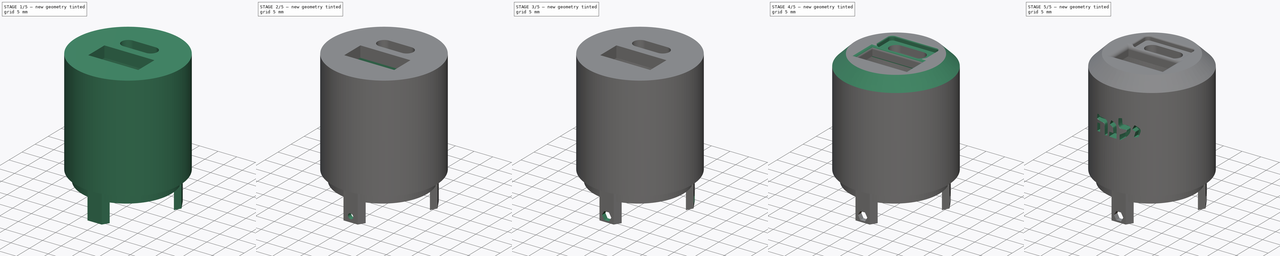
[diagram: build sequence overview — one tinted view per stage of 5, left to right]
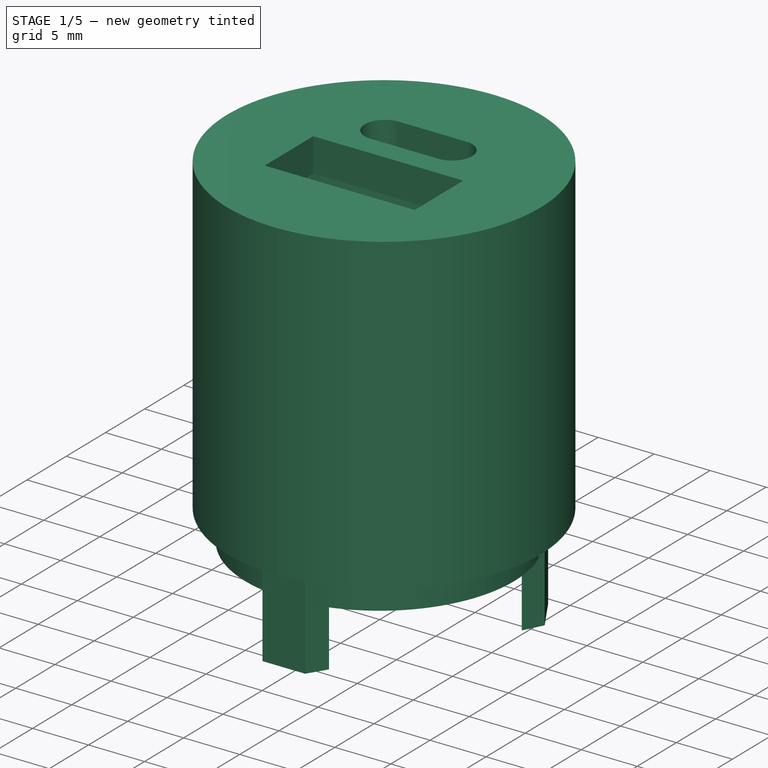
[diagram: stage 1 of 5 — iso view after this stage's code; geometry added in this stage tinted green]
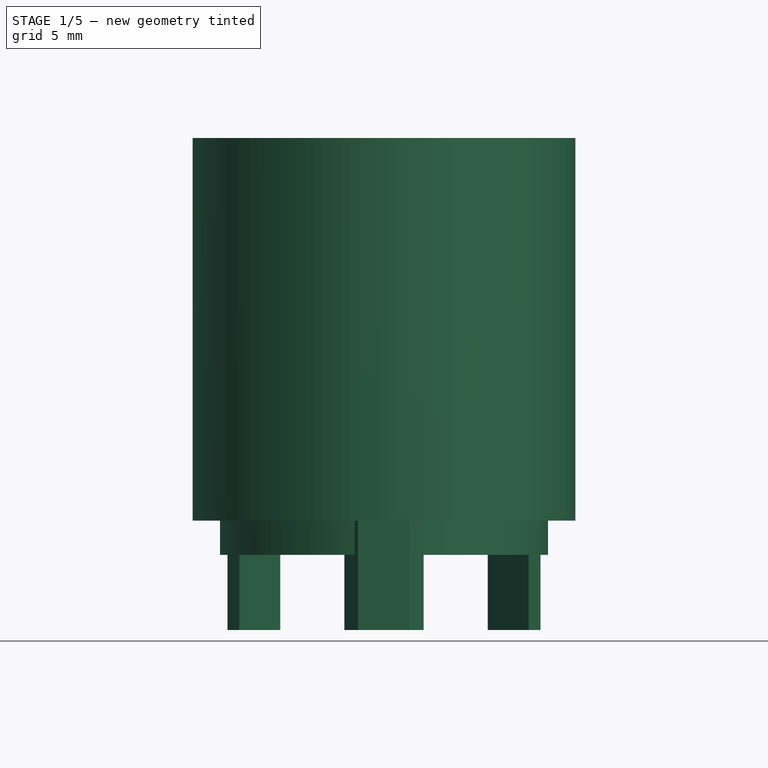
[diagram: stage 1 of 5 — front view after this stage's code; geometry added in this stage tinted green]
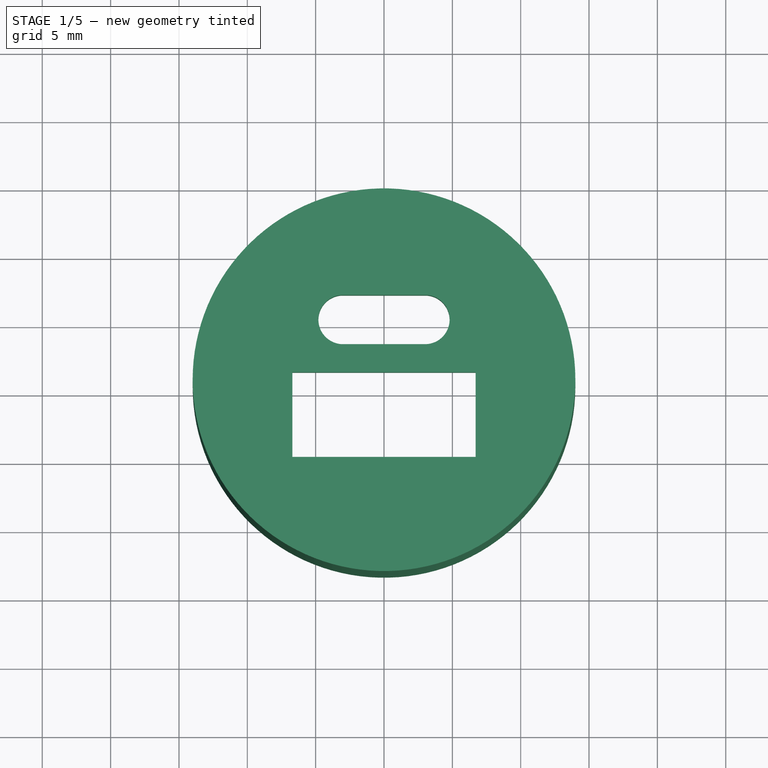
[diagram: stage 1 of 5 — top view after this stage's code; geometry added in this stage tinted green]
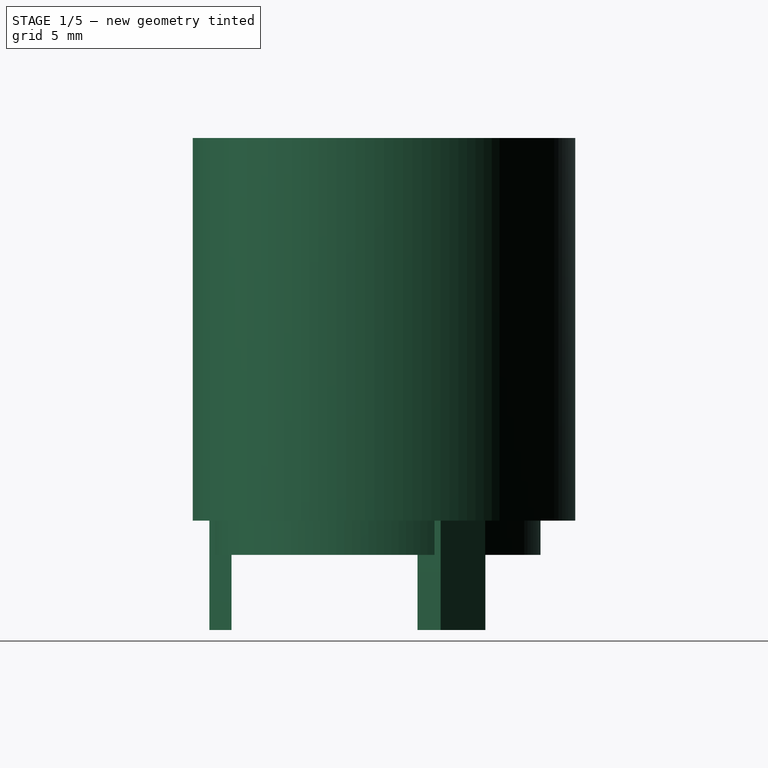
[diagram: stage 1 of 5 — right view after this stage's code; geometry added in this stage tinted green]
FCSTD DOCUMENT  (FreeCAD 0.20R29410 (Git))
Label: lidPowerBank21700x1
License: All rights reserved
LicenseURL: http://en.wikipedia.org/wiki/All_rights_reserved
objects: Sketcher::SketchObject×18, PartDesign::Pocket×12, PartDesign::Pad×6, PartDesign::Body×2, PartDesign::Fillet×2, Part::Cut×2, Part::Part2DObjectPython×1, PartDesign::Chamfer×1, Part::Extrusion×1
note: 66 computed .brp shape members not serialized (recipe doc carries the construction recipe); baked Part::Feature solids carry a one-line shape summary decoded from their .brp

FEATURE [Sketcher::SketchObject] Sketch
  FullyConstrained = true
  MapMode = 5
  Support = -> [XY_Plane]
  sketch-geometry (2):
    g0: Circle CenterX=0 CenterY=0 CenterZ=0 NormalX=0 NormalY=0 NormalZ=1 AngleXU=0 Radius=11
    g1: Circle CenterX=0 CenterY=0.55 CenterZ=0 NormalX=0 NormalY=0 NormalZ=1 AngleXU=0 Radius=14
  constraints (5):
    c: Coincident(g0,g-1)
    c: Radius(g0) = 11
    c: Radius(g1) = 14
    c: DistanceY(g-1,g1) = 0.55
    c: PointOnObject(g1,g-2)
FEATURE [PartDesign::Pad] Pad  label="mainBody"
  Direction = (0,0,1)
  Length = 25
  Length2 = 10
  Profile = -> Sketch
  ReferenceAxis = -> Sketch [N_Axis]
  Refine = true
  Type = 0
FEATURE [Sketcher::SketchObject] Sketch001
  FullyConstrained = true
  MapMode = 5
  Placement = pos=(0,0,25) rot=(0,0,1;0rad)
  Support = -> [Pad]
  sketch-geometry (1):
    g0: Circle CenterX=0 CenterY=0.55 CenterZ=0 NormalX=0 NormalY=0 NormalZ=1 AngleXU=0 Radius=14
  constraints (3):
    c: PointOnObject(g0,g-2)
    c: Radius(g0) = 14
    c: DistanceY(g-1,g0) = 0.55
FEATURE [PartDesign::Pad] Pad001  label="lidOfMainBody"
  BaseFeature = -> Pad
  Direction = (0,0,1)
  Length = 3
  Length2 = 10
  Profile = -> Sketch001
  ReferenceAxis = -> Sketch001 [N_Axis]
  Refine = true
  Type = 0
FEATURE [Sketcher::SketchObject] Sketch002
  AttachmentOffset = pos=(0,0,-36) rot=(0,0,1;0rad)
  FullyConstrained = true
  MapMode = 5
  Placement = pos=(0,0,-8) rot=(0,0,1;0rad)
  Support = -> [Pad001]
  sketch-geometry (13):
    g0: LineSegment StartX=2.9 StartY=-10.6108 StartZ=0 EndX=1.9 EndY=-12.2264 EndZ=0
    g1: LineSegment StartX=1.9 StartY=-12.2264 StartZ=0 EndX=-1.9 EndY=-12.2264 EndZ=0
    g2: LineSegment StartX=-1.9 StartY=-12.2264 StartZ=0 EndX=-2.9 EndY=-10.6108 EndZ=0
    g3: LineSegment StartX=-2.9 StartY=-10.6108 StartZ=0 EndX=2.9 EndY=-10.6108 EndZ=0
    g4: LineSegment StartX=7.58602 StartY=7.96569 StartZ=0 EndX=9.4859 EndY=7.94433 EndZ=0
    g5: LineSegment StartX=9.4859 StartY=7.94433 StartZ=0 EndX=11.4494 EndY=4.69094 EndZ=0
    g6: LineSegment StartX=11.4494 StartY=4.69094 StartZ=0 EndX=10.583 EndY=3 EndZ=0
    g7: LineSegment StartX=10.583 StartY=3 StartZ=0 EndX=7.58602 EndY=7.96569 EndZ=0
    g8: LineSegment StartX=-9.4859 StartY=7.94433 StartZ=0 EndX=-7.58602 EndY=7.96569 EndZ=0
    g9: LineSegment StartX=-7.58602 StartY=7.96569 StartZ=0 EndX=-10.583 EndY=3 EndZ=0
    g10: LineSegment StartX=-10.583 StartY=3 StartZ=0 EndX=-11.4494 EndY=4.69094 EndZ=0
    g11: LineSegment StartX=-11.4494 StartY=4.69094 StartZ=0 EndX=-9.4859 EndY=7.94433 EndZ=0
    g12: Circle CenterX=0 CenterY=0 CenterZ=0 NormalX=0 NormalY=0 NormalZ=1 AngleXU=0 Radius=11
  constraints (38):
    c: Coincident(g0,g1)
    c: Coincident(g1,g2)
    c: Coincident(g2,g3)
    c: Coincident(g3,g0)
    c: Distance(g0) = 1.9
    c: Distance(g2) = 1.9
    c: Distance(g1) = 3.8
    c: Distance(g3) = 5.8
    c: Coincident(g4,g5)
    c: Coincident(g5,g6)
    c: Coincident(g6,g7)
    c: Distance(g4) = 1.9
    c: Distance(g5) = 3.8
    c: Distance(g6) = 1.9
    c: Coincident(g4,g7)
    c: Parallel(g5,g7)
    c: Distance(g7) = 5.8
    c: Coincident(g8,g9)
    c: Coincident(g9,g10)
    c: Coincident(g10,g11)
    c: Distance(g8) = 1.9
    c: Distance(g9) = 5.8
    c: Distance(g11) = 3.8
    c: Distance(g10) = 1.9
    c: Parallel(g9,g11)
    c: Coincident(g11,g8)
    c: Coincident(g12,g-1)
    c: Radius(g12) = 11
    c: PointOnObject(g4,g12)
    c: PointOnObject(g6,g12)
    c: PointOnObject(g9,g12)
    c: PointOnObject(g8,g12)
    c: PointOnObject(g2,g12)
    c: PointOnObject(g0,g12)
    c: DistanceY(g-1,g6) = 3
    c: DistanceY(g-1,g9) = 3
    c: Parallel(g1,g3)
    c: DistanceX(g-2,g2) = -2.9
FEATURE [PartDesign::Pad] Pad002  label="legForNuts"
  BaseFeature = -> Pad001
  Direction = (0,0,1)
  Length = 11
  Length2 = 10
  Profile = -> Sketch002
  ReferenceAxis = -> Sketch002 [N_Axis]
  Refine = true
  Type = 0
FEATURE [Sketcher::SketchObject] Sketch003
  FullyConstrained = true
  MapMode = 5
  Placement = pos=(0,0,0) rot=(1,0,0;3.14159rad)
  Support = -> [Pad002]
  sketch-geometry (2):
    g0: Circle CenterX=0 CenterY=0 CenterZ=0 NormalX=0 NormalY=0 NormalZ=1 AngleXU=0 Radius=11
    g1: Circle CenterX=0 CenterY=0 CenterZ=0 NormalX=0 NormalY=0 NormalZ=1 AngleXU=0 Radius=12
  constraints (4):
    c: Radius(g0) = 11
    c: Coincident(g0,g-1)
    c: Coincident(g1,g0)
    c: Radius(g1) = 12
FEATURE [PartDesign::Pad] Pad003  label="stableRing"
  BaseFeature = -> Pad002
  Direction = (0,0,-1)
  Length = 2.5
  Length2 = 10
  Profile = -> Sketch003
  ReferenceAxis = -> Sketch003 [N_Axis]
  Refine = true
  Type = 0
FEATURE [Sketcher::SketchObject] Sketch010
  FullyConstrained = true
  MapMode = 5
  Placement = pos=(0,0,25) rot=(1,0,0;3.14159rad)
  sketch-geometry (12):
    g0: LineSegment StartX=-10 StartY=-3 StartZ=0 EndX=10 EndY=-3 EndZ=0
    g1: LineSegment StartX=10 StartY=-3 StartZ=0 EndX=10 EndY=-1.4 EndZ=0
    g2: LineSegment StartX=10 StartY=-1.4 StartZ=0 EndX=-10 EndY=-1.4 EndZ=0
    g3: LineSegment StartX=-10 StartY=-1.4 StartZ=0 EndX=-10 EndY=-3 EndZ=0
    g4: ArcOfCircle CenterX=-3 CenterY=-4.95 CenterZ=0 NormalX=0 NormalY=0 NormalZ=1 AngleXU=0 Radius=1.8 StartAngle=1.5708 EndAngle=4.71239
    g5: ArcOfCircle CenterX=3 CenterY=-4.95 CenterZ=0 NormalX=0 NormalY=0 NormalZ=1 AngleXU=0 Radius=1.8 StartAngle=4.71239 EndAngle=7.85398
    g6: LineSegment StartX=-3 StartY=-6.75 StartZ=0 EndX=3 EndY=-6.75 EndZ=0
    g7: LineSegment StartX=3 StartY=-3.15 StartZ=0 EndX=-3 EndY=-3.15 EndZ=0
    g8: LineSegment StartX=-6.7 StartY=5.1 StartZ=0 EndX=6.7 EndY=5.1 EndZ=0
    g9: LineSegment StartX=6.7 StartY=5.1 StartZ=0 EndX=6.7 EndY=-1.1 EndZ=0
    g10: LineSegment StartX=6.7 StartY=-1.1 StartZ=0 EndX=-6.7 EndY=-1.1 EndZ=0
    g11: LineSegment StartX=-6.7 StartY=-1.1 StartZ=0 EndX=-6.7 EndY=5.1 EndZ=0
  constraints (34):
    c: Coincident(g0,g1)
    c: Coincident(g1,g2)
    c: Coincident(g2,g3)
    c: Coincident(g3,g0)
    c: Horizontal(g0)
    c: Horizontal(g2)
    c: Vertical(g1)
    c: Vertical(g3)
    c: Distance(g0) = 20
    c: Distance(g1) = 1.6
    c: DistanceY(g-1,g0) = -3
    c: DistanceX(g-2,g0) = -10
    c: Tangent(g4,g6) = -1.5708
    c: Tangent(g6,g5) = -1.5708
    c: Tangent(g5,g7) = -1.5708
    c: Tangent(g7,g4) = -1.5708
    c: Equal(g4,g5)
    c: Horizontal(g6)
    c: Distance(g7) = 6
    c: Radius(g5) = 1.8
    c: DistanceX(g-2,g4) = -3
    c: Coincident(g8,g9)
    c: Coincident(g9,g10)
    c: Coincident(g10,g11)
    c: Coincident(g11,g8)
    c: Horizontal(g8)
    c: Horizontal(g10)
    c: Vertical(g9)
    c: Vertical(g11)
    c: Distance(g8) = 13.4
    c: Distance(g9) = 6.2
    c: DistanceX(g-2,g8) = -6.7
    c: Distance(g5,g0) = 0.15
    c: Distance(g9,g2) = 0.3
FEATURE [PartDesign::Pocket] Pocket006  label="usbPortsHole"
  BaseFeature = -> Pad003
  Direction = (0,0,1)
  Length = 3
  Length2 = 5
  Profile = -> Sketch010
  ReferenceAxis = -> Sketch010 [N_Axis]
  Refine = true
  Type = 0
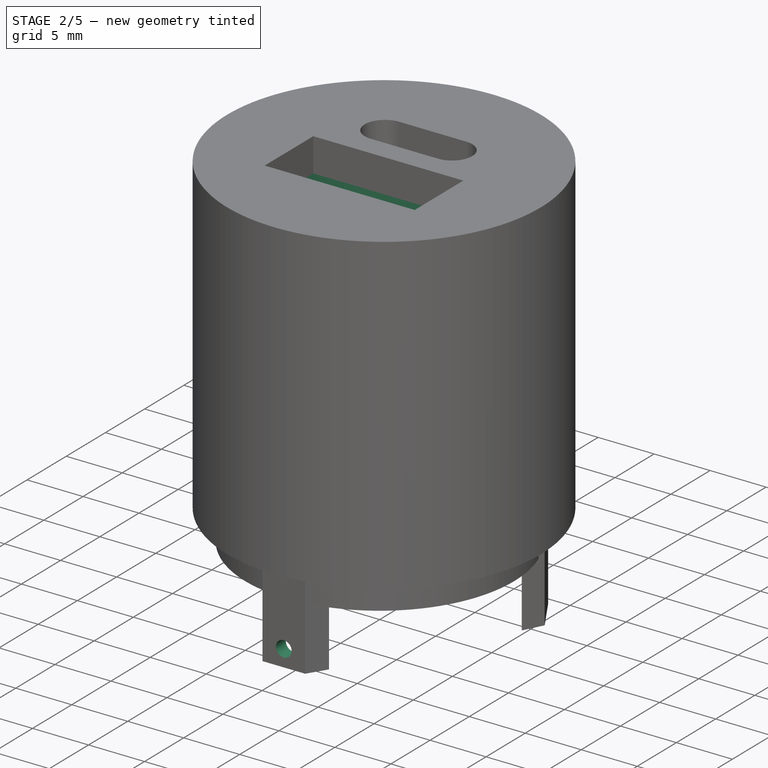
[diagram: stage 2 of 5 — iso view after this stage's code; geometry added in this stage tinted green]
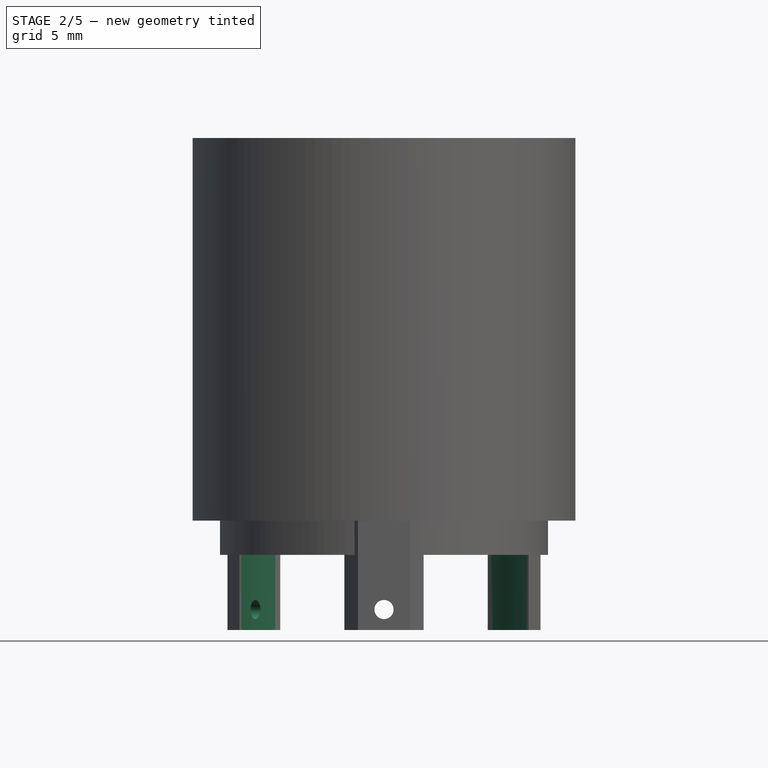
[diagram: stage 2 of 5 — front view after this stage's code; geometry added in this stage tinted green]
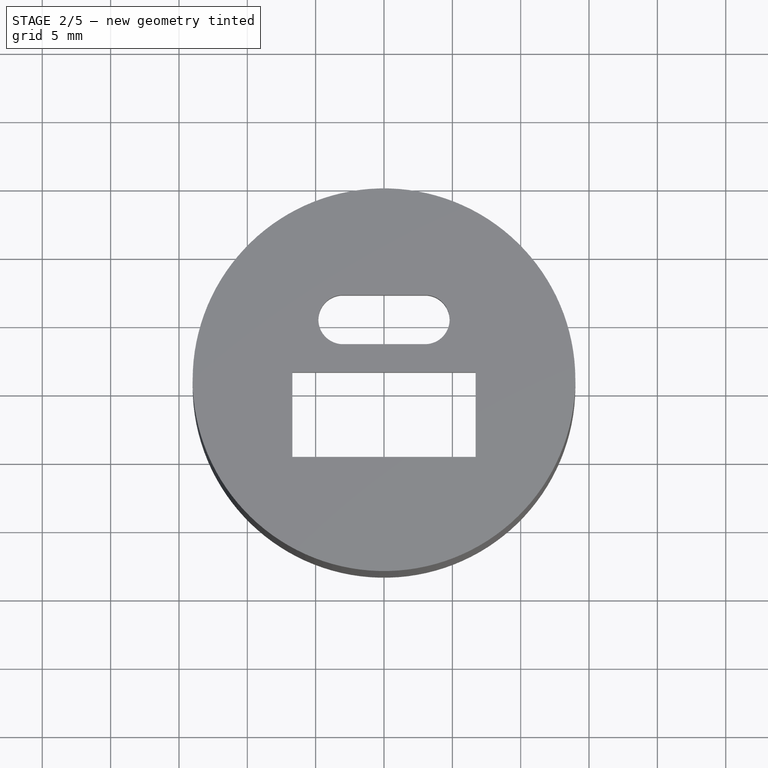
[diagram: stage 2 of 5 — top view after this stage's code; geometry added in this stage tinted green]
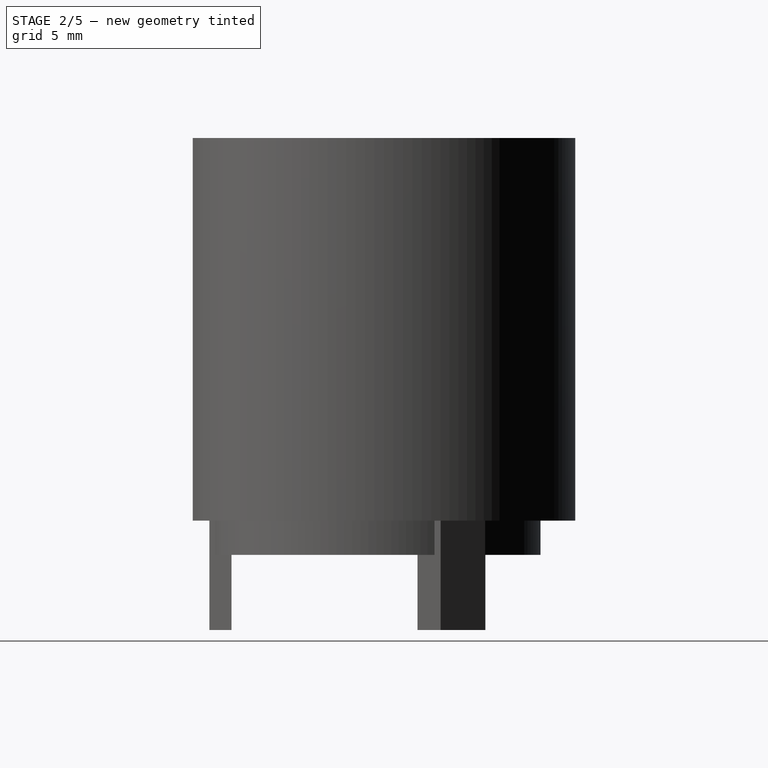
[diagram: stage 2 of 5 — right view after this stage's code; geometry added in this stage tinted green]
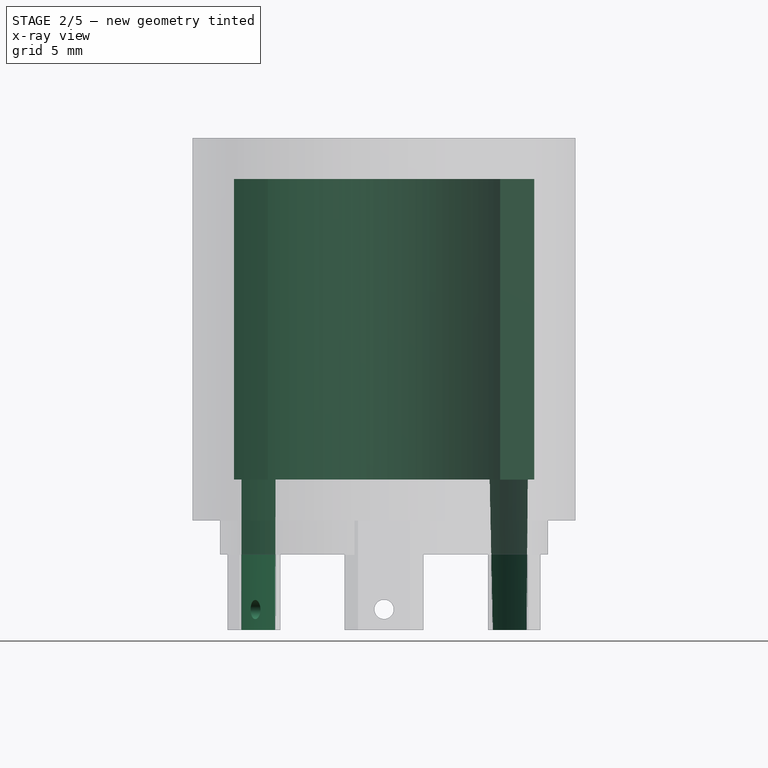
[diagram: stage 2 of 5 — x-ray composite at the front view; earlier geometry ghosted, this stage's added geometry solid]
FEATURE [Sketcher::SketchObject] Sketch011
  FullyConstrained = true
  MapMode = 5
  Placement = pos=(0,-5.1,0) rot=(0,0.707107,0.707107;3.14159rad)
  Support = -> [Pocket006]
  sketch-geometry (10):
    g0: ArcOfCircle CenterX=-5.5 CenterY=7 CenterZ=0 NormalX=0 NormalY=0 NormalZ=1 AngleXU=0 Radius=1 StartAngle=1.5708 EndAngle=3.14159
    g1: LineSegment StartX=-5.5 StartY=8 StartZ=0 EndX=5.5 EndY=8 EndZ=0
    g2: ArcOfCircle CenterX=5.5 CenterY=7 CenterZ=0 NormalX=0 NormalY=0 NormalZ=1 AngleXU=0 Radius=1 StartAngle=0 EndAngle=1.5708
    g3: LineSegment StartX=6.5 StartY=7 StartZ=0 EndX=6.5 EndY=3 EndZ=0
    g4: ArcOfCircle CenterX=5.5 CenterY=3 CenterZ=0 NormalX=0 NormalY=0 NormalZ=1 AngleXU=0 Radius=1 StartAngle=4.71239 EndAngle=6.28319
    g5: LineSegment StartX=5.5 StartY=2 StartZ=0 EndX=-5.5 EndY=2 EndZ=0
    g6: ArcOfCircle CenterX=-5.5 CenterY=3 CenterZ=0 NormalX=0 NormalY=0 NormalZ=1 AngleXU=0 Radius=1 StartAngle=3.14159 EndAngle=4.71239
    g7: LineSegment StartX=-6.5 StartY=3 StartZ=0 EndX=-6.5 EndY=7 EndZ=0
    g8: GeomPoint X=-6.5 Y=8 Z=0
    g9: GeomPoint X=6.5 Y=2 Z=0
  constraints (24):
    c: Tangent(g0,g1) = 1.5708
    c: Tangent(g1,g2) = 1.5708
    c: Tangent(g2,g3) = 1.5708
    c: Tangent(g3,g4) = 1.5708
    c: Tangent(g4,g5) = 1.5708
    c: Tangent(g5,g6) = 1.5708
    c: Tangent(g6,g7) = 1.5708
    c: Tangent(g7,g0) = 1.5708
    c: Horizontal(g1)
    c: Horizontal(g5)
    c: Vertical(g3)
    c: Vertical(g7)
    c: Equal(g0,g2)
    c: Equal(g2,g4)
    c: Equal(g4,g6)
    c: PointOnObject(g8,g1)
    c: PointOnObject(g8,g7)
    c: PointOnObject(g9,g3)
    c: PointOnObject(g9,g5)
    c: Distance(g3) = 4
    c: Distance(g1) = 11
    c: Radius(g6) = 1
    c: DistanceY(g-1,g4) = 2
    c: DistanceX(g-2,g4) = 5.5
FEATURE [PartDesign::Pocket] Pocket007  label="usbCadaptHole"
  BaseFeature = -> Pocket006
  Direction = (0,-1,2e-16)
  Length = 1.2
  Length2 = 5
  Profile = -> Sketch011
  ReferenceAxis = -> Sketch011 [N_Axis]
  Refine = true
  Type = 0
FEATURE [Sketcher::SketchObject] Sketch013
  FullyConstrained = true
  MapMode = 5
  Placement = pos=(0,0,25) rot=(1,0,0;3.14159rad)
  sketch-geometry (10):
    g0: ArcOfCircle CenterX=0 CenterY=0 CenterZ=0 NormalX=0 NormalY=0 NormalZ=1 AngleXU=0 Radius=10.5 StartAngle=3.25613 EndAngle=6.16865
    g1: ArcOfCircle CenterX=0 CenterY=0 CenterZ=0 NormalX=0 NormalY=0 NormalZ=1 AngleXU=0 Radius=11 StartAngle=3.11432 EndAngle=6.31046
    g2: LineSegment StartX=-10.9959 StartY=0.3 StartZ=0 EndX=-10.4959 EndY=0.3 EndZ=0
    g3: LineSegment StartX=10.4959 StartY=0.3 StartZ=0 EndX=10.9959 EndY=0.3 EndZ=0
    g4: LineSegment StartX=8.49591 StartY=0.3 StartZ=0 EndX=10.4959 EndY=0.3 EndZ=0
    g5: LineSegment StartX=8.49591 StartY=0.3 StartZ=0 EndX=8.49591 EndY=-1.2 EndZ=0
    g6: LineSegment StartX=8.49591 StartY=-1.2 StartZ=0 EndX=10.4312 EndY=-1.2 EndZ=0
    g7: LineSegment StartX=-10.4959 StartY=0.3 StartZ=0 EndX=-8.49591 EndY=0.3 EndZ=0
    g8: LineSegment StartX=-8.49591 StartY=0.3 StartZ=0 EndX=-8.49591 EndY=-1.2 EndZ=0
    g9: LineSegment StartX=-8.49591 StartY=-1.2 StartZ=0 EndX=-10.4312 EndY=-1.2 EndZ=0
  constraints (30):
    c: Radius(g0) = 10.5
    c: Radius(g1) = 11
    c: Parallel(g2,g-1)
    c: DistanceY(g-1,g2) = 0.3
    c: Coincident(g1,g0)
    c: Coincident(g0,g-1)
    c: Horizontal(g3)
    c: DistanceY(g-1,g3) = 0.3
    c: Coincident(g4,g5)
    c: Vertical(g5)
    c: Coincident(g5,g6)
    c: Horizontal(g6)
    c: Parallel(g4,g-1)
    c: Coincident(g4,g3)
    c: Distance(g4) = 2
    c: Distance(g5) = 1.5
    c: Horizontal(g7)
    c: Coincident(g7,g8)
    c: Coincident(g8,g9)
    c: Horizontal(g9)
    c: Parallel(g8,g-2)
    c: Coincident(g7,g2)
    c: Distance(g7) = 2
    c: Distance(g8) = 1.5
    c: Coincident(g1,g3)
    c: Coincident(g1,g2)
    c: Coincident(g0,g9)
    c: Coincident(g0,g6)
    c: Distance(g2) = 0.5
    c: Distance(g3) = 0.5
FEATURE [PartDesign::Pad] Pad004  label="internalWallCircuit"
  BaseFeature = -> Pocket007
  Direction = (0,0,-1)
  Length = 25
  Length2 = 10
  Profile = -> Sketch013
  ReferenceAxis = -> Sketch013 [N_Axis]
  Refine = true
  Type = 0
FEATURE [PartDesign::Body] Body001
  Group = -> [Sketch014,Pad005]
  Origin = -> Origin001
  Tip = -> Pad005
FEATURE [Part::Part2DObjectPython] ShapeString  # Draft 2D object (typed FeaturePython)
  FontFile = <userpath>/Desktop/FreeCAD/fonts/Suez One.ttf
  MakeFace = true
  Placement = pos=(-1,-142,3.2e-14) rot=(1,0,0;1.5708rad)
  Size = 3
  String =  הנלי
  Tracking = 0
FEATURE [Sketcher::SketchObject] Sketch015
  FullyConstrained = true
  MapMode = 5
  Placement = pos=(0,0,-8) rot=(1,0,0;3.14159rad)
  Support = -> [Pad004]
  sketch-geometry (2):
    g0: Circle CenterX=0 CenterY=0 CenterZ=0 NormalX=0 NormalY=0 NormalZ=1 AngleXU=0 Radius=11
    g1: Circle CenterX=0 CenterY=0 CenterZ=0 NormalX=0 NormalY=0 NormalZ=1 AngleXU=0 Radius=8.2
  constraints (4):
    c: Coincident(g0,g-1)
    c: Radius(g0) = 11
    c: Coincident(g1,g0)
    c: Radius(g1) = 8.2
FEATURE [PartDesign::Pocket] Pocket008  label="legsAdaptation"
  BaseFeature = -> Pad004
  Direction = (0,0,1)
  Length = 11
  Length2 = 5
  Profile = -> Sketch015
  ReferenceAxis = -> Sketch015 [N_Axis]
  Refine = true
  Type = 0
FEATURE [Sketcher::SketchObject] Sketch016
  FullyConstrained = true
  MapMode = 5
  Placement = pos=(0,-12.2264,0) rot=(1,0,0;1.5708rad)
  Support = -> [Pocket008]
  sketch-geometry (1):
    g0: Circle CenterX=0 CenterY=-6.5 CenterZ=0 NormalX=0 NormalY=0 NormalZ=1 AngleXU=0 Radius=0.7
  constraints (3):
    c: PointOnObject(g0,g-2)
    c: Radius(g0) = 0.7
    c: DistanceY(g-1,g0) = -6.5
FEATURE [PartDesign::Pocket] Pocket  label="screwHole01"
  BaseFeature = -> Pocket008
  Direction = (0,1,-2e-16)
  Length = 2
  Length2 = 5
  Profile = -> Sketch016
  ReferenceAxis = -> Sketch016 [N_Axis]
  Refine = true
  Type = 0
FEATURE [Sketcher::SketchObject] Sketch017
  FullyConstrained = true
  MapMode = 5
  Placement = pos=(-10.4677,6.31763,0) rot=(-0.370706,0.656726,0.656726;3.8516rad)
  Support = -> [Pocket]
  sketch-geometry (1):
    g0: Circle CenterX=0 CenterY=-6.5 CenterZ=0 NormalX=0 NormalY=0 NormalZ=1 AngleXU=0 Radius=0.7
  constraints (3):
    c: PointOnObject(g0,g-2)
    c: Radius(g0) = 0.7
    c: DistanceY(g-1,g0) = -6.5
FEATURE [PartDesign::Pocket] Pocket009  label="screwHole02"
  BaseFeature = -> Pocket
  Direction = (0.856154,-0.516721,2e-16)
  Length = 2
  Length2 = 5
  Profile = -> Sketch017
  ReferenceAxis = -> Sketch017 [N_Axis]
  Refine = true
  Type = 0
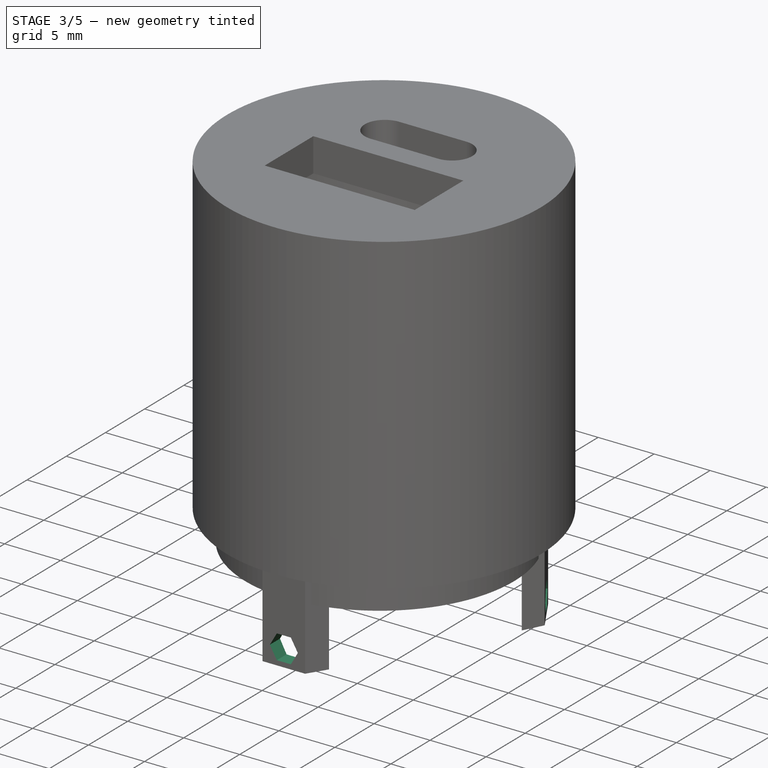
[diagram: stage 3 of 5 — iso view after this stage's code; geometry added in this stage tinted green]
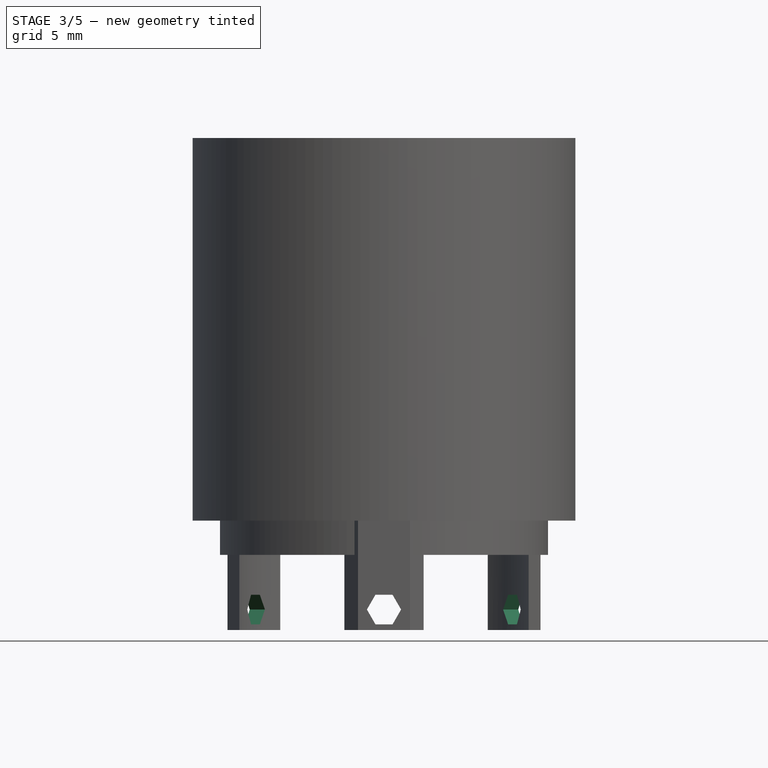
[diagram: stage 3 of 5 — front view after this stage's code; geometry added in this stage tinted green]
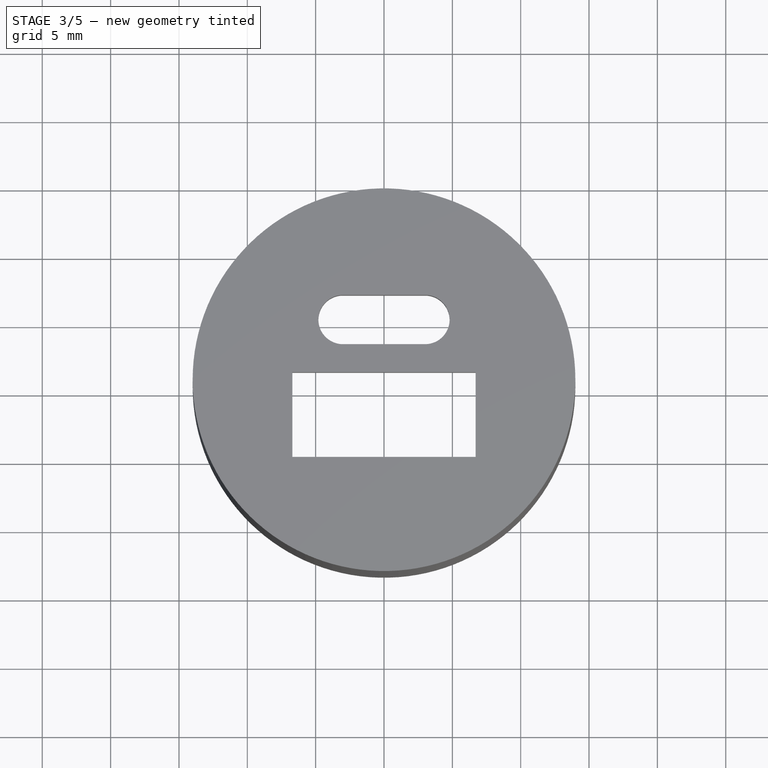
[diagram: stage 3 of 5 — top view after this stage's code; geometry added in this stage tinted green]
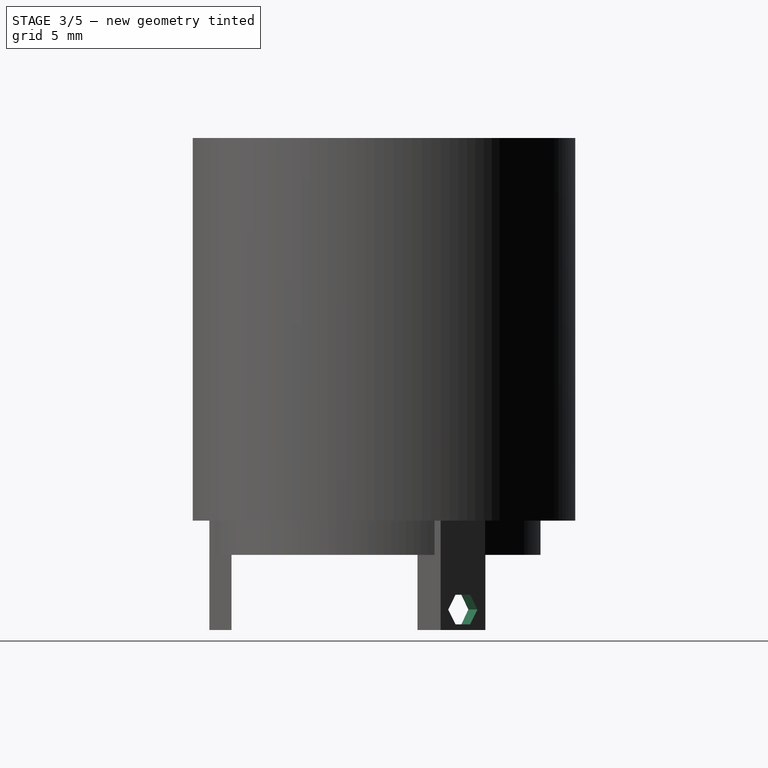
[diagram: stage 3 of 5 — right view after this stage's code; geometry added in this stage tinted green]
FEATURE [Sketcher::SketchObject] Sketch018
  FullyConstrained = true
  MapMode = 5
  Placement = pos=(10.4677,6.31763,0) rot=(0.370706,0.656726,0.656726;2.43159rad)
  Support = -> [Pocket009]
  sketch-geometry (1):
    g0: Circle CenterX=0 CenterY=-6.5 CenterZ=0 NormalX=0 NormalY=0 NormalZ=1 AngleXU=0 Radius=0.7
  constraints (3):
    c: PointOnObject(g0,g-2)
    c: Radius(g0) = 0.7
    c: DistanceY(g-1,g0) = -6.5
FEATURE [PartDesign::Pocket] Pocket010  label="screwHole03"
  BaseFeature = -> Pocket009
  Direction = (-0.856154,-0.516721,2e-16)
  Length = 2
  Length2 = 5
  Profile = -> Sketch018
  ReferenceAxis = -> Sketch018 [N_Axis]
  Refine = true
  Type = 0
FEATURE [Sketcher::SketchObject] Sketch019
  FullyConstrained = true
  MapMode = 5
  Placement = pos=(0,-12.2264,0) rot=(1,0,0;1.5708rad)
  Support = -> [Pocket010]
  sketch-geometry (7):
    g0: LineSegment StartX=0.625 StartY=-7.58253 StartZ=0 EndX=1.25 EndY=-6.5 EndZ=0
    g1: LineSegment StartX=1.25 StartY=-6.5 StartZ=0 EndX=0.625 EndY=-5.41747 EndZ=0
    g2: LineSegment StartX=0.625 StartY=-5.41747 StartZ=0 EndX=-0.625 EndY=-5.41747 EndZ=0
    g3: LineSegment StartX=-0.625 StartY=-5.41747 StartZ=0 EndX=-1.25 EndY=-6.5 EndZ=0
    g4: LineSegment StartX=-1.25 StartY=-6.5 StartZ=0 EndX=-0.625 EndY=-7.58253 EndZ=0
    g5: LineSegment StartX=-0.625 StartY=-7.58253 StartZ=0 EndX=0.625 EndY=-7.58253 EndZ=0
    g6: Circle CenterX=0 CenterY=-6.5 CenterZ=0 NormalX=0 NormalY=0 NormalZ=1 AngleXU=0 Radius=1.25
  constraints (17):
    c: Coincident(g0,g1)
    c: Coincident(g1,g2)
    c: Coincident(g2,g3)
    c: Coincident(g3,g4)
    c: Coincident(g4,g5)
    c: Coincident(g5,g0)
    c: Equal(g0, g1-g5) x5
    c: PointOnObject(g0,g6)
    c: PointOnObject(g1,g6)
    c: PointOnObject(g2,g6)
    c: PointOnObject(g3,g6)
    c: PointOnObject(g4,g6)
    c: PointOnObject(g5,g6)
    c: PointOnObject(g6,g-2)
    c: Radius(g6) = 1.25
    c: DistanceY(g-1,g6) = -6.5
    c: Parallel(g2,g-1)
FEATURE [PartDesign::Pocket] Pocket011  label="nutHole01"
  BaseFeature = -> Pocket010
  Direction = (0,1,-2e-16)
  Length = 2
  Length2 = 5
  Profile = -> Sketch019
  ReferenceAxis = -> Sketch019 [N_Axis]
  Refine = true
  Type = 0
FEATURE [Sketcher::SketchObject] Sketch020
  FullyConstrained = true
  MapMode = 5
  Placement = pos=(-10.4677,6.31763,0) rot=(-0.370706,0.656726,0.656726;3.8516rad)
  Support = -> [Pocket011]
  sketch-geometry (7):
    g0: LineSegment StartX=-0.625 StartY=-7.58253 StartZ=0 EndX=0.625 EndY=-7.58253 EndZ=0
    g1: LineSegment StartX=0.625 StartY=-7.58253 StartZ=0 EndX=1.25 EndY=-6.5 EndZ=0
    g2: LineSegment StartX=1.25 StartY=-6.5 StartZ=0 EndX=0.625 EndY=-5.41747 EndZ=0
    g3: LineSegment StartX=0.625 StartY=-5.41747 StartZ=0 EndX=-0.625 EndY=-5.41747 EndZ=0
    g4: LineSegment StartX=-0.625 StartY=-5.41747 StartZ=0 EndX=-1.25 EndY=-6.5 EndZ=0
    g5: LineSegment StartX=-1.25 StartY=-6.5 StartZ=0 EndX=-0.625 EndY=-7.58253 EndZ=0
    g6: Circle CenterX=0 CenterY=-6.5 CenterZ=0 NormalX=0 NormalY=0 NormalZ=1 AngleXU=0 Radius=1.25
  constraints (17):
    c: Coincident(g0,g1)
    c: Coincident(g1,g2)
    c: Coincident(g2,g3)
    c: Coincident(g3,g4)
    c: Coincident(g4,g5)
    c: Coincident(g5,g0)
    c: Equal(g0, g1-g5) x5
    c: PointOnObject(g0,g6)
    c: PointOnObject(g1,g6)
    c: PointOnObject(g2,g6)
    c: PointOnObject(g3,g6)
    c: PointOnObject(g4,g6)
    c: PointOnObject(g5,g6)
    c: PointOnObject(g6,g-2)
    c: Radius(g6) = 1.25
    c: DistanceY(g-1,g6) = -6.5
    c: Parallel(g3,g-1)
FEATURE [PartDesign::Pocket] Pocket012  label="nutHole02"
  BaseFeature = -> Pocket011
  Direction = (0.856154,-0.516721,2e-16)
  Length = 3
  Length2 = 5
  Profile = -> Sketch020
  ReferenceAxis = -> Sketch020 [N_Axis]
  Refine = true
  Type = 0
FEATURE [Sketcher::SketchObject] Sketch021
  FullyConstrained = true
  MapMode = 5
  Placement = pos=(10.4677,6.31763,0) rot=(0.370706,0.656726,0.656726;2.43159rad)
  Support = -> [Pocket012]
  sketch-geometry (7):
    g0: LineSegment StartX=1.25 StartY=-6.5 StartZ=0 EndX=0.625 EndY=-5.41747 EndZ=0
    g1: LineSegment StartX=0.625 StartY=-5.41747 StartZ=0 EndX=-0.625 EndY=-5.41747 EndZ=0
    g2: LineSegment StartX=-0.625 StartY=-5.41747 StartZ=0 EndX=-1.25 EndY=-6.5 EndZ=0
    g3: LineSegment StartX=-1.25 StartY=-6.5 StartZ=0 EndX=-0.625 EndY=-7.58253 EndZ=0
    g4: LineSegment StartX=-0.625 StartY=-7.58253 StartZ=0 EndX=0.625 EndY=-7.58253 EndZ=0
    g5: LineSegment StartX=0.625 StartY=-7.58253 StartZ=0 EndX=1.25 EndY=-6.5 EndZ=0
    g6: Circle CenterX=0 CenterY=-6.5 CenterZ=0 NormalX=0 NormalY=0 NormalZ=1 AngleXU=0 Radius=1.25
  constraints (17):
    c: Coincident(g0,g1)
    c: Coincident(g1,g2)
    c: Coincident(g2,g3)
    c: Coincident(g3,g4)
    c: Coincident(g4,g5)
    c: Coincident(g5,g0)
    c: Equal(g0, g1-g5) x5
    c: PointOnObject(g0,g6)
    c: PointOnObject(g1,g6)
    c: PointOnObject(g2,g6)
    c: PointOnObject(g3,g6)
    c: PointOnObject(g4,g6)
    c: PointOnObject(g5,g6)
    c: PointOnObject(g6,g-2)
    c: Radius(g6) = 1.25
    c: Parallel(g1,g-1)
    c: DistanceY(g-1,g6) = -6.5
FEATURE [PartDesign::Pocket] Pocket013  label="nutHole03"
  BaseFeature = -> Pocket012
  Direction = (-0.856154,-0.516721,2e-16)
  Length = 2
  Length2 = 5
  Profile = -> Sketch021
  ReferenceAxis = -> Sketch021 [N_Axis]
  Refine = true
  Type = 0
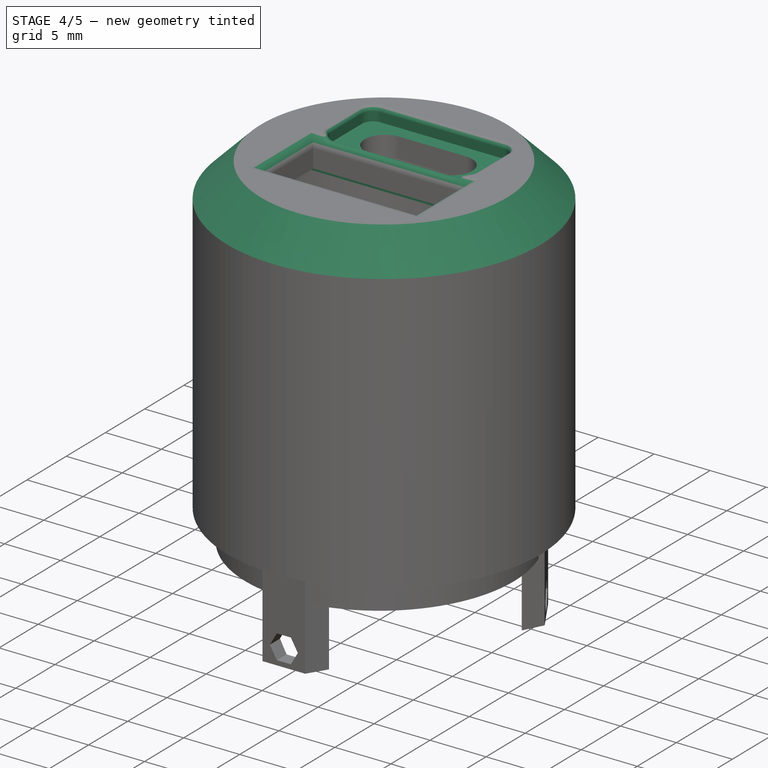
[diagram: stage 4 of 5 — iso view after this stage's code; geometry added in this stage tinted green]
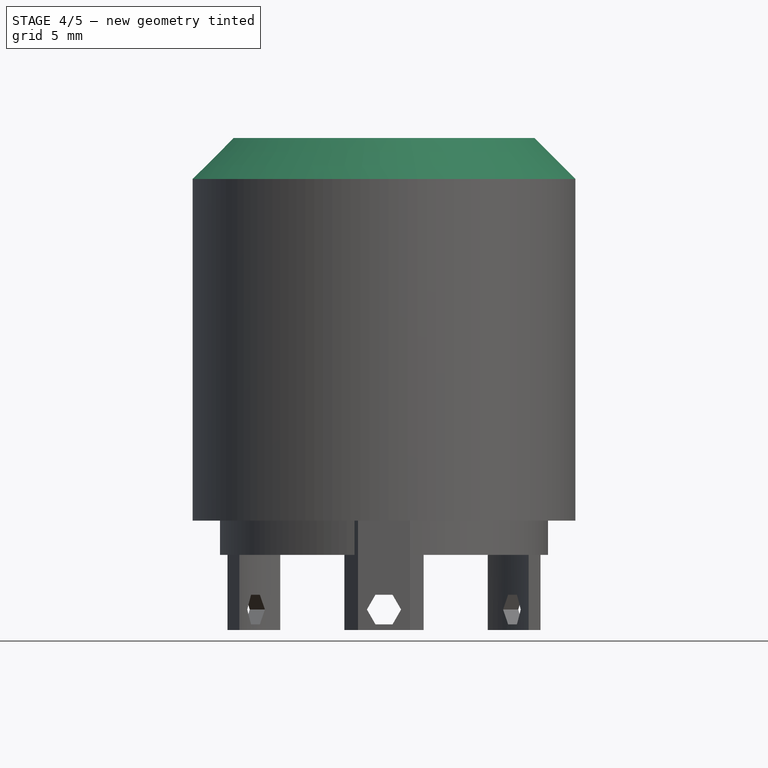
[diagram: stage 4 of 5 — front view after this stage's code; geometry added in this stage tinted green]
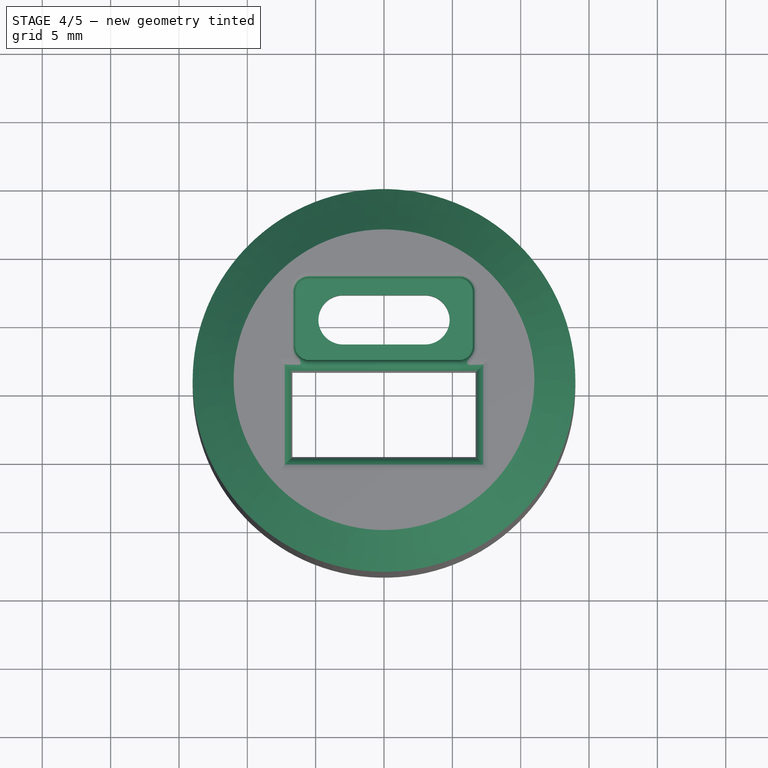
[diagram: stage 4 of 5 — top view after this stage's code; geometry added in this stage tinted green]
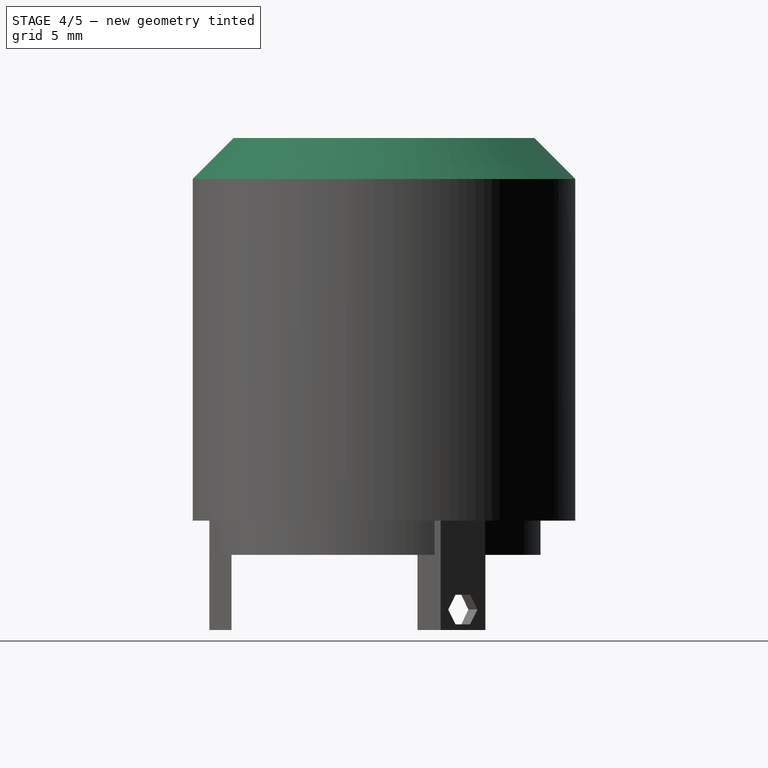
[diagram: stage 4 of 5 — right view after this stage's code; geometry added in this stage tinted green]
FEATURE [Sketcher::SketchObject] Sketch022
  FullyConstrained = true
  MapMode = 5
  Placement = pos=(0,0,25) rot=(1,0,0;3.14159rad)
  Support = -> [Pocket013]
  sketch-geometry (8):
    g0: LineSegment StartX=-7.25 StartY=6 StartZ=0 EndX=7.25 EndY=6 EndZ=0
    g1: LineSegment StartX=7.25 StartY=6 StartZ=0 EndX=7.25 EndY=-1.5 EndZ=0
    g2: LineSegment StartX=7.25 StartY=-1.5 StartZ=0 EndX=-7.25 EndY=-1.5 EndZ=0
    g3: LineSegment StartX=-7.25 StartY=-1.5 StartZ=0 EndX=-7.25 EndY=6 EndZ=0
    g4: LineSegment StartX=-5.5 StartY=-2.35 StartZ=0 EndX=5.5 EndY=-2.35 EndZ=0
    g5: LineSegment StartX=5.5 StartY=-2.35 StartZ=0 EndX=5.5 EndY=-4.85 EndZ=0
    g6: LineSegment StartX=5.5 StartY=-4.85 StartZ=0 EndX=-5.5 EndY=-4.85 EndZ=0
    g7: LineSegment StartX=-5.5 StartY=-4.85 StartZ=0 EndX=-5.5 EndY=-2.35 EndZ=0
  constraints (24):
    c: Coincident(g0,g1)
    c: Coincident(g1,g2)
    c: Coincident(g2,g3)
    c: Coincident(g3,g0)
    c: Horizontal(g0)
    c: Horizontal(g2)
    c: Vertical(g1)
    c: Vertical(g3)
    c: Distance(g0) = 14.5
    c: DistanceX(g-2,g0) = 7.25
    c: Distance(g1) = 7.5
    c: DistanceY(g-1,g1) = -1.5
    c: Coincident(g4,g5)
    c: Coincident(g5,g6)
    c: Coincident(g6,g7)
    c: Coincident(g7,g4)
    c: Horizontal(g4)
    c: Horizontal(g6)
    c: Vertical(g5)
    c: Vertical(g7)
    c: Distance(g4) = 11
    c: Distance(g5) = 2.5
    c: DistanceX(g-2,g4) = 5.5
    c: DistanceY(g-1,g4) = -2.35
FEATURE [PartDesign::Pocket] Pocket014  label="internalUsbAdapt"
  BaseFeature = -> Pocket013
  Direction = (0,0,1)
  Length = 0.4
  Length2 = 5
  Profile = -> Sketch022
  ReferenceAxis = -> Sketch022 [N_Axis]
  Refine = true
  Type = 0
FEATURE [PartDesign::Chamfer] Chamfer
  Angle = 45
  Base = -> Pocket014 [Edge1]
  BaseFeature = -> Pocket014
  ChamferType = 0
  FlipDirection = false
  Refine = true
  Size = 3
  Size2 = 1
  SupportTransform = false
  UseAllEdges = false
FEATURE [PartDesign::Fillet] Fillet
  Base = -> Chamfer [Edge4,Edge5,Edge2,Edge3]
  BaseFeature = -> Chamfer
  Radius = 1
  Refine = true
  SupportTransform = false
  UseAllEdges = false
FEATURE [Sketcher::SketchObject] Sketch023
  FullyConstrained = true
  MapMode = 5
  Placement = pos=(0,0,28) rot=(0,0,1;0rad)
  Support = -> [Fillet]
  sketch-geometry (10):
    g0: ArcOfCircle CenterX=-5.5 CenterY=7 CenterZ=0 NormalX=0 NormalY=0 NormalZ=1 AngleXU=0 Radius=1 StartAngle=1.5708 EndAngle=3.14159
    g1: LineSegment StartX=-5.5 StartY=8 StartZ=0 EndX=5.5 EndY=8 EndZ=0
    g2: ArcOfCircle CenterX=5.5 CenterY=7 CenterZ=0 NormalX=0 NormalY=0 NormalZ=1 AngleXU=0 Radius=1 StartAngle=3e-16 EndAngle=1.5708
    g3: LineSegment StartX=6.5 StartY=7 StartZ=0 EndX=6.5 EndY=3 EndZ=0
    g4: ArcOfCircle CenterX=5.5 CenterY=3 CenterZ=0 NormalX=0 NormalY=0 NormalZ=1 AngleXU=0 Radius=1 StartAngle=4.71239 EndAngle=6.28319
    g5: LineSegment StartX=5.5 StartY=2 StartZ=0 EndX=-5.5 EndY=2 EndZ=0
    g6: ArcOfCircle CenterX=-5.5 CenterY=3 CenterZ=0 NormalX=0 NormalY=0 NormalZ=1 AngleXU=0 Radius=1 StartAngle=3.14159 EndAngle=4.71239
    g7: LineSegment StartX=-6.5 StartY=3 StartZ=0 EndX=-6.5 EndY=7 EndZ=0
    g8: GeomPoint X=-6.5 Y=8 Z=0
    g9: GeomPoint X=6.5 Y=2 Z=0
  constraints (24):
    c: Tangent(g0,g1) = 1.5708
    c: Tangent(g1,g2) = 1.5708
    c: Tangent(g2,g3) = 1.5708
    c: Tangent(g3,g4) = 1.5708
    c: Tangent(g4,g5) = 1.5708
    c: Tangent(g5,g6) = 1.5708
    c: Tangent(g6,g7) = 1.5708
    c: Tangent(g7,g0) = 1.5708
    c: Horizontal(g1)
    c: Horizontal(g5)
    c: Vertical(g3)
    c: Vertical(g7)
    c: Equal(g0,g2)
    c: Equal(g2,g4)
    c: Equal(g4,g6)
    c: PointOnObject(g8,g1)
    c: PointOnObject(g8,g7)
    c: PointOnObject(g9,g3)
    c: PointOnObject(g9,g5)
    c: Distance(g1) = 11
    c: Distance(g3) = 4
    c: DistanceX(g-2,g1) = 5.5
    c: Radius(g2) = 1
    c: DistanceY(g-1,g3) = 3
FEATURE [PartDesign::Pocket] Pocket015  label="usbCadapt"
  BaseFeature = -> Fillet
  Direction = (0,0,-1)
  Length = 1.2
  Length2 = 5
  Profile = -> Sketch023
  ReferenceAxis = -> Sketch023 [N_Axis]
  Refine = true
  Type = 0
FEATURE [PartDesign::Fillet] Fillet001
  Base = -> Pocket015 [Edge8,Edge7,Edge6,Edge5,Edge4]
  BaseFeature = -> Pocket015
  Radius = 0.4
  Refine = true
  SupportTransform = false
  UseAllEdges = false
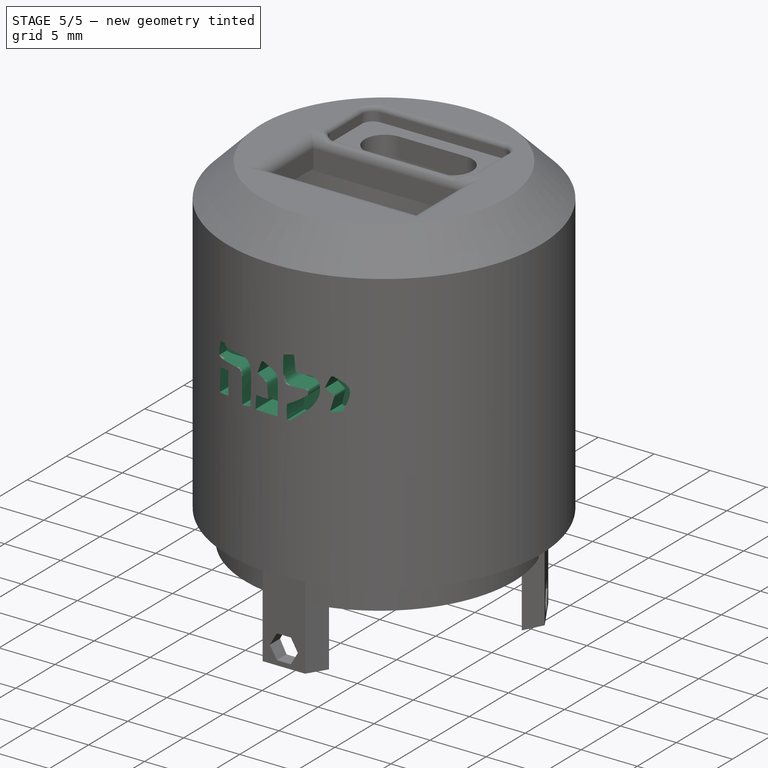
[diagram: stage 5 of 5 — iso view after this stage's code; geometry added in this stage tinted green]
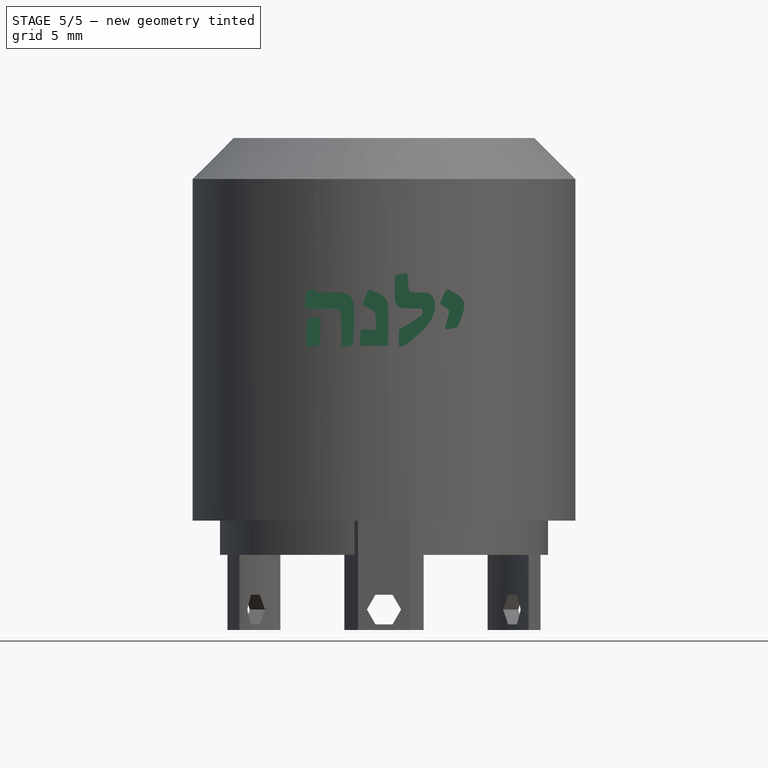
[diagram: stage 5 of 5 — front view after this stage's code; geometry added in this stage tinted green]
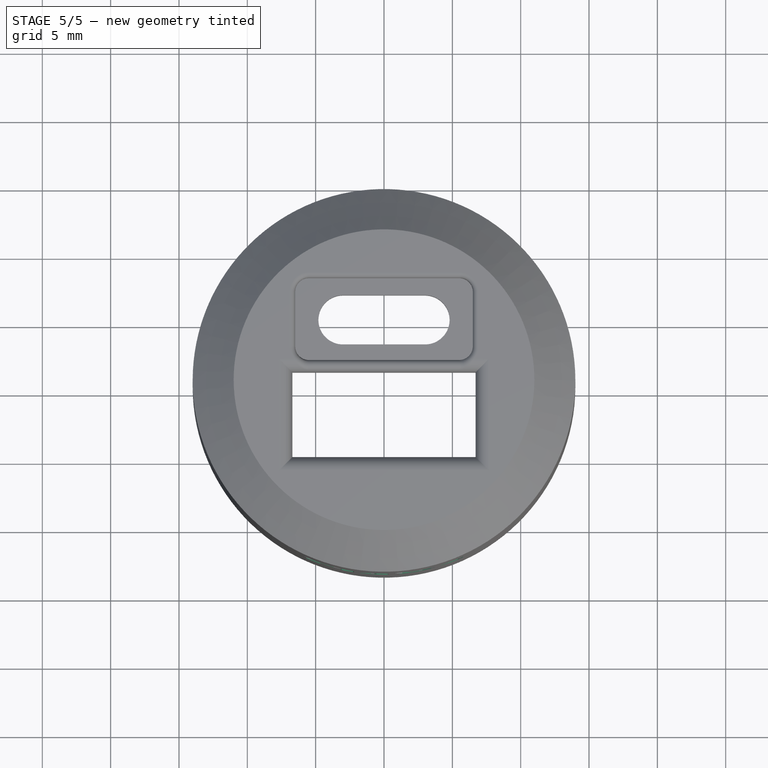
[diagram: stage 5 of 5 — top view after this stage's code; geometry added in this stage tinted green]
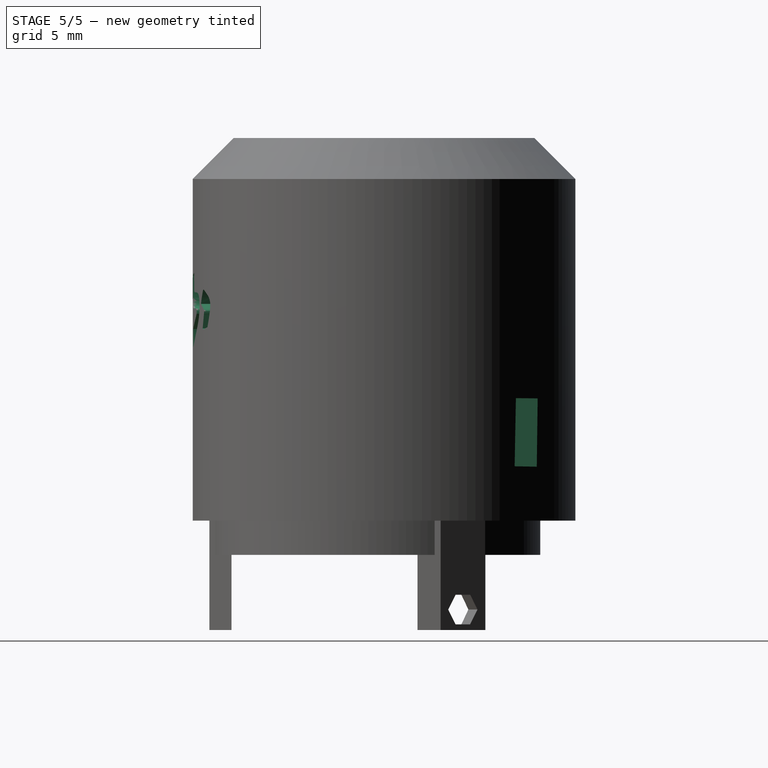
[diagram: stage 5 of 5 — right view after this stage's code; geometry added in this stage tinted green]
FEATURE [Sketcher::SketchObject] Sketch014
  AttachmentOffset = pos=(0,0,-2) rot=(0,0,1;0.017453rad)
  FullyConstrained = true
  MapMode = 5
  Placement = pos=(0,2,4e-16) rot=(0.999924,-0.008726,0.008726;1.57087rad)
  Support = -> [XZ_Plane001]
  sketch-geometry (4):
    g0: LineSegment StartX=8.5 StartY=3.8 StartZ=0 EndX=10.3 EndY=3.8 EndZ=0
    g1: LineSegment StartX=10.3 StartY=3.8 StartZ=0 EndX=10.3 EndY=8.8 EndZ=0
    g2: LineSegment StartX=10.3 StartY=8.8 StartZ=0 EndX=8.5 EndY=8.8 EndZ=0
    g3: LineSegment StartX=8.5 StartY=8.8 StartZ=0 EndX=8.5 EndY=3.8 EndZ=0
  constraints (12):
    c: Coincident(g0,g1)
    c: Coincident(g1,g2)
    c: Coincident(g2,g3)
    c: Coincident(g3,g0)
    c: Horizontal(g0)
    c: Horizontal(g2)
    c: Vertical(g1)
    c: Vertical(g3)
    c: Distance(g0) = 1.8
    c: Distance(g1) = 5
    c: DistanceX(g-2,g0) = 8.5
    c: DistanceY(g-1,g0) = 3.8
FEATURE [PartDesign::Pad] Pad005  label="ledPassLight"
  Direction = (0,-1,-2e-16)
  Length = 11
  Length2 = 10
  Placement = pos=(0,0,0) rot=(1,0,0;1.5708rad)
  Profile = -> Sketch014
  ReferenceAxis = -> Sketch014 [N_Axis]
  Refine = true
  Reversed = true
  Type = 0
FEATURE [Part::Extrusion] Extrude
  Base = -> ShapeString
  Dir = (0,-1,-3e-16)
  DirMode = 2
  FaceMakerClass = Part::FaceMakerBullseye
  LengthFwd = 5
  LengthRev = 0
  Placement = pos=(-6.6,130.8,12.8) rot=(0,0,1;0rad)
  Solid = false
  Symmetric = false
FEATURE [Sketcher::SketchObject] Sketch024
  FullyConstrained = true
  MapMode = 5
  Placement = pos=(0,0,-2.5) rot=(1,0,0;3.14159rad)
  Support = -> [Pad004]
  sketch-geometry (1):
    g0: Circle CenterX=0 CenterY=-11.3 CenterZ=0 NormalX=0 NormalY=0 NormalZ=1 AngleXU=0 Radius=1
  constraints (3):
    c: PointOnObject(g0,g-2)
    c: Radius(g0) = 1
    c: DistanceY(g-1,g0) = -11.3
FEATURE [PartDesign::Pocket] Pocket016  label="wireHole"
  BaseFeature = -> Fillet001
  Direction = (0,0,1)
  Length = 4
  Length2 = 5
  Profile = -> Sketch024
  ReferenceAxis = -> Sketch024 [N_Axis]
  Refine = true
  Type = 0
FEATURE [PartDesign::Body] Body
  Group = -> [Sketch,Pad,Sketch001,Pad001,Sketch002,Pad002,Sketch003,Pad003,Sketch010,Pocket006,Sketch011,Pocket007,Sketch013,Pad004,Sketch015,Pocket008,Sketch016,Pocket,Sketch017,Pocket009,Sketch018,Pocket010,Sketch019,Pocket011,Sketch020,Pocket012,Sketch021,Pocket013,Sketch022,Pocket014,Chamfer,Fillet,Sketch023,Pocket015,Fillet001,Sketch024,Pocket016]
  Origin = -> Origin
  Tip = -> Pocket016
FEATURE [Part::Cut] Cut
  Base = -> Body
  Refine = true
  Tool = -> Body001
FEATURE [Part::Cut] Cut001
  Base = -> Cut
  Refine = true
  Tool = -> Extrude
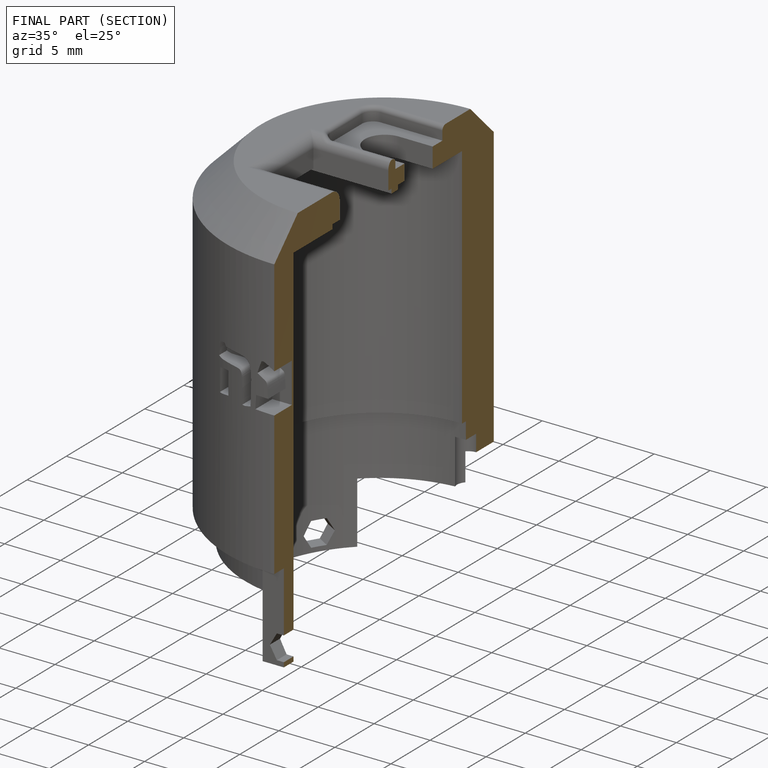
[diagram: finished part — half-section view (interior)]
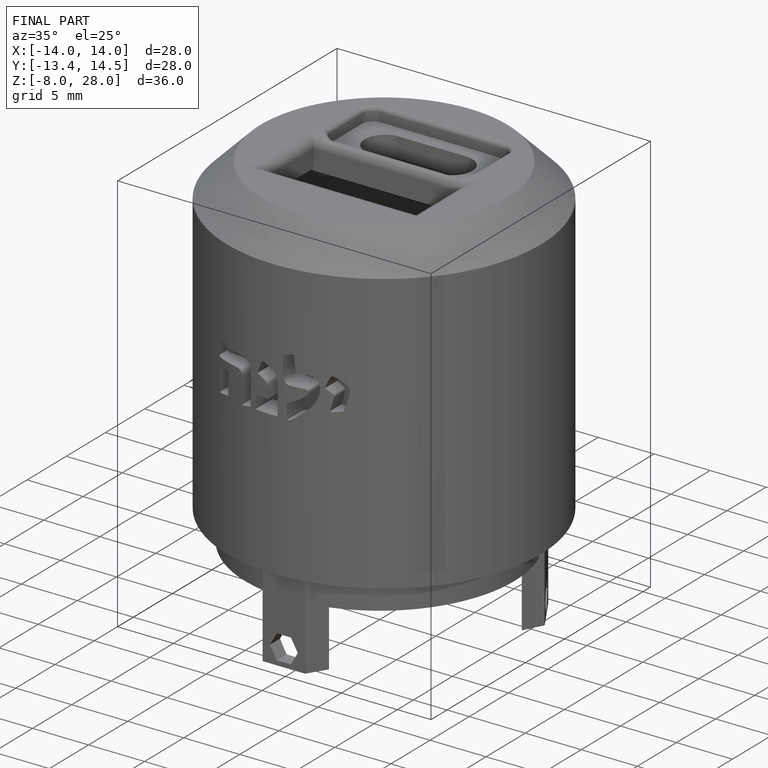
[diagram: finished part — iso view with bounding-box wireframe]
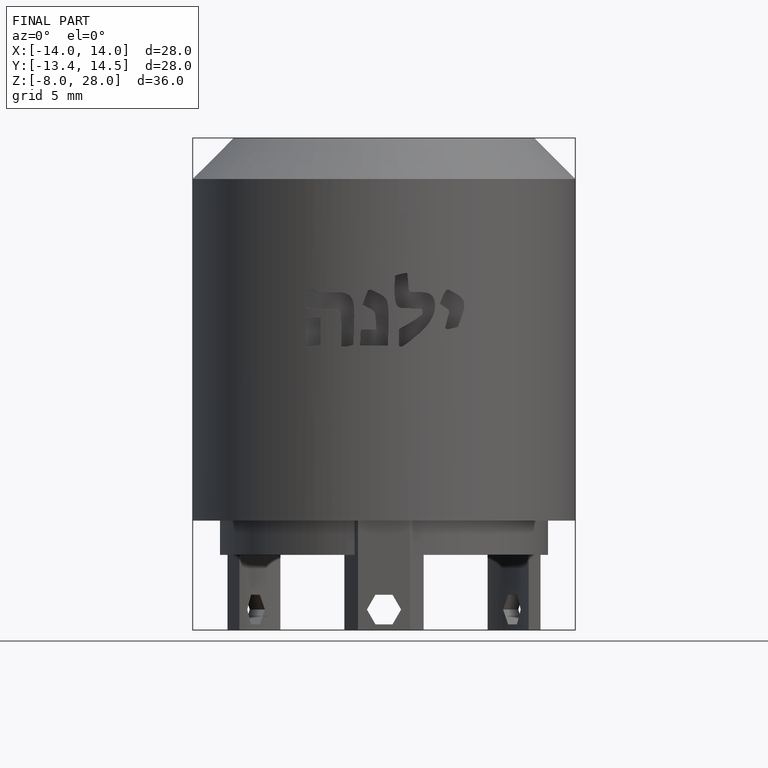
[diagram: finished part — front view with bounding-box wireframe]
